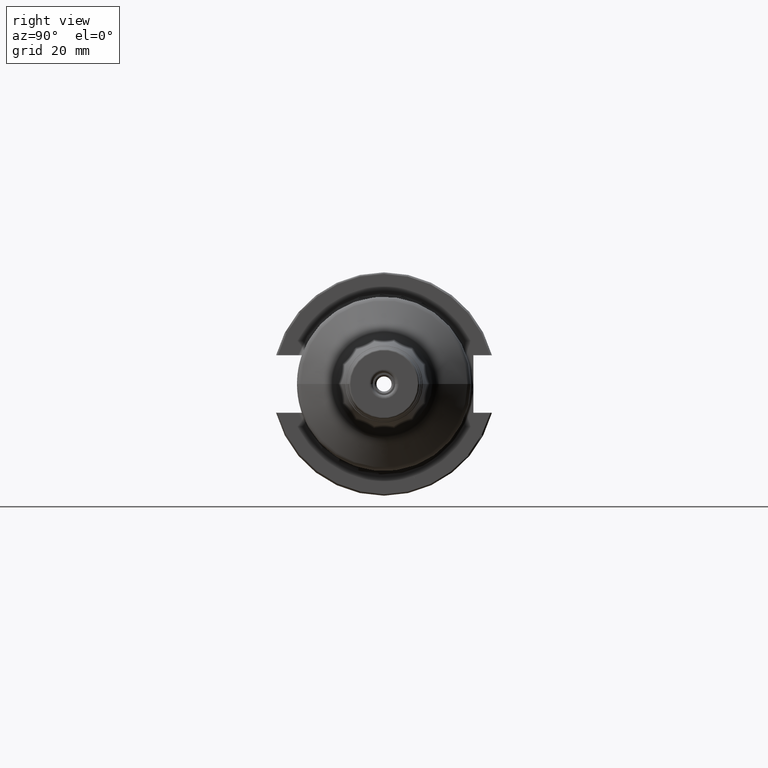
[diagram: clean part render]
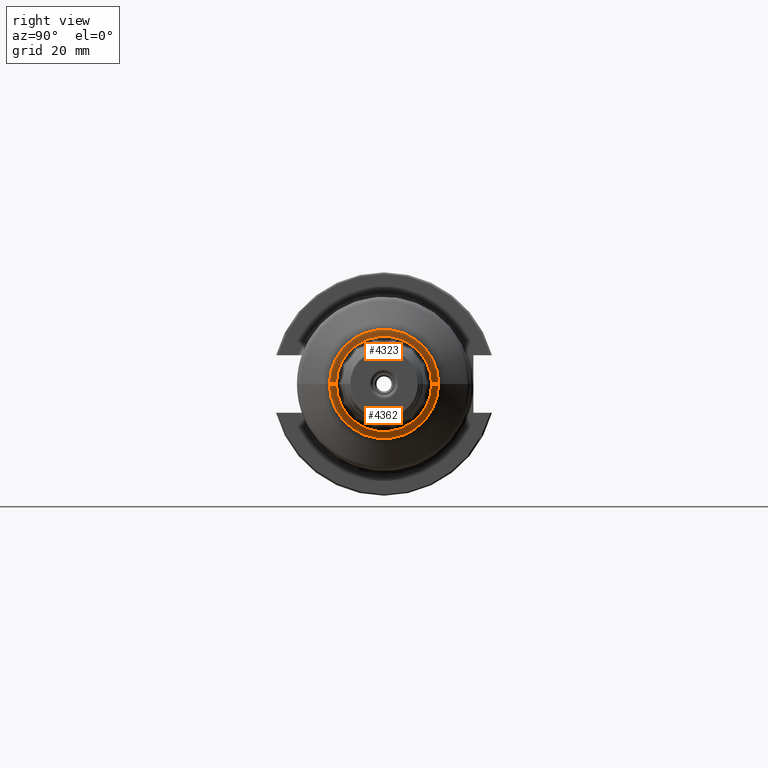
[diagram: same view with one multi-face feature highlighted, each face labeled with its STEP entity id]
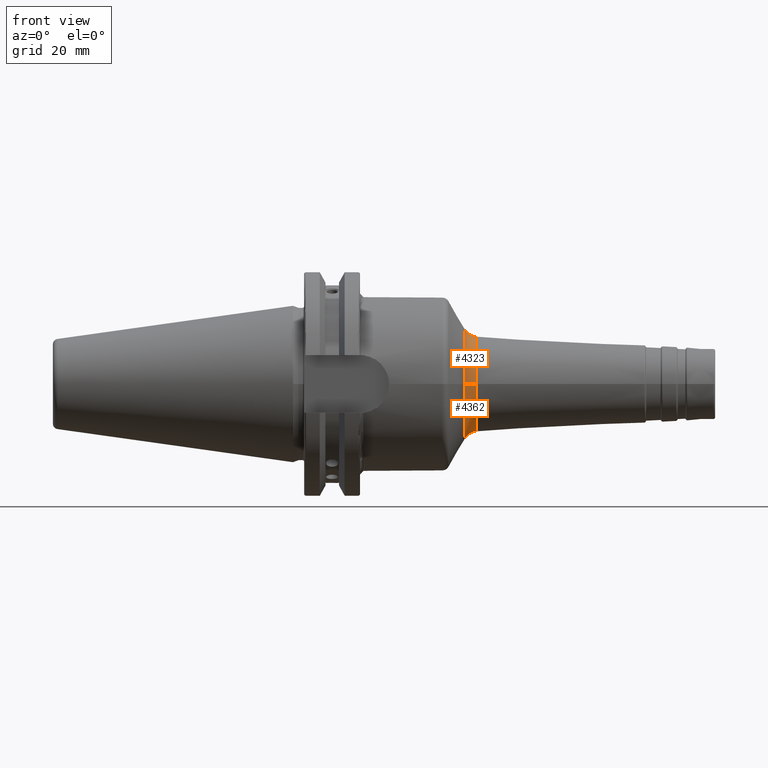
[diagram: same view with one multi-face feature highlighted, each face labeled with its STEP entity id]
A machine part, right view. The highlighted faces form ONE feature: a constant-radius fillet chain: 2 tangent blend faces with common blend radius 3.9878 mm. The faces share edges in the B-rep.
A second angle (front view) of the same feature is appended — it is thin or edge-on in the first view.
Their STEP definitions:
[1] entity #4362 (Torus):
#1541=CARTESIAN_POINT('',(2.053127220842E0,0.E0,0.E0));
#1542=DIRECTION('',(1.E0,0.E0,0.E0));
#1543=DIRECTION('',(0.E0,-1.E0,0.E0));
#1544=AXIS2_PLACEMENT_3D('',#1541,#1542,#1543);
#1626=CARTESIAN_POINT('',(2.061343965973E0,6.902593480596E-1,
-2.632373485856E-13));
#1627=DIRECTION('',(0.E0,3.813616089587E-13,1.E0));
#1628=DIRECTION('',(-8.660254037847E-1,-4.999999999996E-1,1.906808044792E-13));
#1629=AXIS2_PLACEMENT_3D('',#1626,#1627,#1628);
#1654=CARTESIAN_POINT('',(1.925377977578E0,0.E0,0.E0));
#1655=DIRECTION('',(1.E0,0.E0,0.E0));
#1656=DIRECTION('',(0.E0,-1.E0,0.E0));
#1657=AXIS2_PLACEMENT_3D('',#1654,#1655,#1656);
#1659=CARTESIAN_POINT('',(2.061343965973E0,-6.902593480596E-1,
2.631488776883E-13));
#1660=DIRECTION('',(0.E0,-3.812332394215E-13,-1.E0));
#1661=DIRECTION('',(-8.660254037847E-1,4.999999999996E-1,-1.906166197106E-13));
#1662=AXIS2_PLACEMENT_3D('',#1659,#1660,#1661);
#2592=CARTESIAN_POINT('',(1.925377977578E0,6.117593480597E-1,
-4.393821434051E-14));
#2593=VERTEX_POINT('',#2592);
#2594=CARTESIAN_POINT('',(1.925377977578E0,-6.117593480597E-1,
4.384921969260E-14));
#2595=VERTEX_POINT('',#2594);
#2599=CARTESIAN_POINT('',(2.053127220842E0,-5.334745111032E-1,0.E0));
#2600=CARTESIAN_POINT('',(2.053127220842E0,5.334745111032E-1,0.E0));
#2601=VERTEX_POINT('',#2599);
#2602=VERTEX_POINT('',#2600);
#4351=CARTESIAN_POINT('',(2.061343965973E0,0.E0,0.E0));
#4352=DIRECTION('',(1.E0,0.E0,0.E0));
#4353=DIRECTION('',(0.E0,-9.998389306268E-1,1.794750130391E-2));
#4354=AXIS2_PLACEMENT_3D('',#4351,#4352,#4353);
#4355=TOROIDAL_SURFACE('',#4354,6.902593480596E-1,1.57E-1);
#4356=ORIENTED_EDGE('',*,*,#4346,.F.);
#4357=ORIENTED_EDGE('',*,*,#4319,.T.);
#4358=ORIENTED_EDGE('',*,*,#4201,.T.);
#4359=ORIENTED_EDGE('',*,*,#4316,.F.);
#4360=EDGE_LOOP('',(#4356,#4357,#4358,#4359));
#4361=FACE_OUTER_BOUND('',#4360,.F.);
#4362=ADVANCED_FACE('',(#4361),#4355,.F.);
#1545=CIRCLE('',#1544,5.334745111032E-1);
#1630=CIRCLE('',#1629,1.57E-1);
#1658=CIRCLE('',#1657,6.117593480596E-1);
#1663=CIRCLE('',#1662,1.57E-1);
#4201=EDGE_CURVE('',#2601,#2602,#1545,.T.);
#4316=EDGE_CURVE('',#2593,#2602,#1630,.T.);
#4319=EDGE_CURVE('',#2595,#2601,#1663,.T.);
#4346=EDGE_CURVE('',#2595,#2593,#1658,.T.);
[2] entity #4323 (Torus):
#1601=CARTESIAN_POINT('',(2.053127220842E0,0.E0,0.E0));
#1602=DIRECTION('',(1.E0,0.E0,0.E0));
#1603=DIRECTION('',(0.E0,1.E0,0.E0));
#1604=AXIS2_PLACEMENT_3D('',#1601,#1602,#1603);
#1626=CARTESIAN_POINT('',(2.061343965973E0,6.902593480596E-1,
-2.632373485856E-13));
#1627=DIRECTION('',(0.E0,3.813616089587E-13,1.E0));
#1628=DIRECTION('',(-8.660254037847E-1,-4.999999999996E-1,1.906808044792E-13));
#1629=AXIS2_PLACEMENT_3D('',#1626,#1627,#1628);
#1631=CARTESIAN_POINT('',(1.925377977578E0,0.E0,0.E0));
#1632=DIRECTION('',(1.E0,0.E0,0.E0));
#1633=DIRECTION('',(0.E0,1.E0,0.E0));
#1634=AXIS2_PLACEMENT_3D('',#1631,#1632,#1633);
#1659=CARTESIAN_POINT('',(2.061343965973E0,-6.902593480596E-1,
2.631488776883E-13));
#1660=DIRECTION('',(0.E0,-3.812332394215E-13,-1.E0));
#1661=DIRECTION('',(-8.660254037847E-1,4.999999999996E-1,-1.906166197106E-13));
#1662=AXIS2_PLACEMENT_3D('',#1659,#1660,#1661);
#2592=CARTESIAN_POINT('',(1.925377977578E0,6.117593480597E-1,
-4.393821434051E-14));
#2593=VERTEX_POINT('',#2592);
#2594=CARTESIAN_POINT('',(1.925377977578E0,-6.117593480597E-1,
4.384921969260E-14));
#2595=VERTEX_POINT('',#2594);
#2599=CARTESIAN_POINT('',(2.053127220842E0,-5.334745111032E-1,0.E0));
#2600=CARTESIAN_POINT('',(2.053127220842E0,5.334745111032E-1,0.E0));
#2601=VERTEX_POINT('',#2599);
#2602=VERTEX_POINT('',#2600);
#4309=CARTESIAN_POINT('',(2.061343965973E0,0.E0,0.E0));
#4310=DIRECTION('',(1.E0,0.E0,0.E0));
#4311=DIRECTION('',(0.E0,9.998389306268E-1,-1.794750130391E-2));
#4312=AXIS2_PLACEMENT_3D('',#4309,#4310,#4311);
#4313=TOROIDAL_SURFACE('',#4312,6.902593480596E-1,1.57E-1);
#4315=ORIENTED_EDGE('',*,*,#4314,.F.);
#4317=ORIENTED_EDGE('',*,*,#4316,.T.);
#4318=ORIENTED_EDGE('',*,*,#4275,.T.);
#4320=ORIENTED_EDGE('',*,*,#4319,.F.);
#4321=EDGE_LOOP('',(#4315,#4317,#4318,#4320));
#4322=FACE_OUTER_BOUND('',#4321,.F.);
#4323=ADVANCED_FACE('',(#4322),#4313,.F.);
#1605=CIRCLE('',#1604,5.334745111032E-1);
#1630=CIRCLE('',#1629,1.57E-1);
#1635=CIRCLE('',#1634,6.117593480596E-1);
#1663=CIRCLE('',#1662,1.57E-1);
#4275=EDGE_CURVE('',#2602,#2601,#1605,.T.);
#4314=EDGE_CURVE('',#2593,#2595,#1635,.T.);
#4316=EDGE_CURVE('',#2593,#2602,#1630,.T.);
#4319=EDGE_CURVE('',#2595,#2601,#1663,.T.);